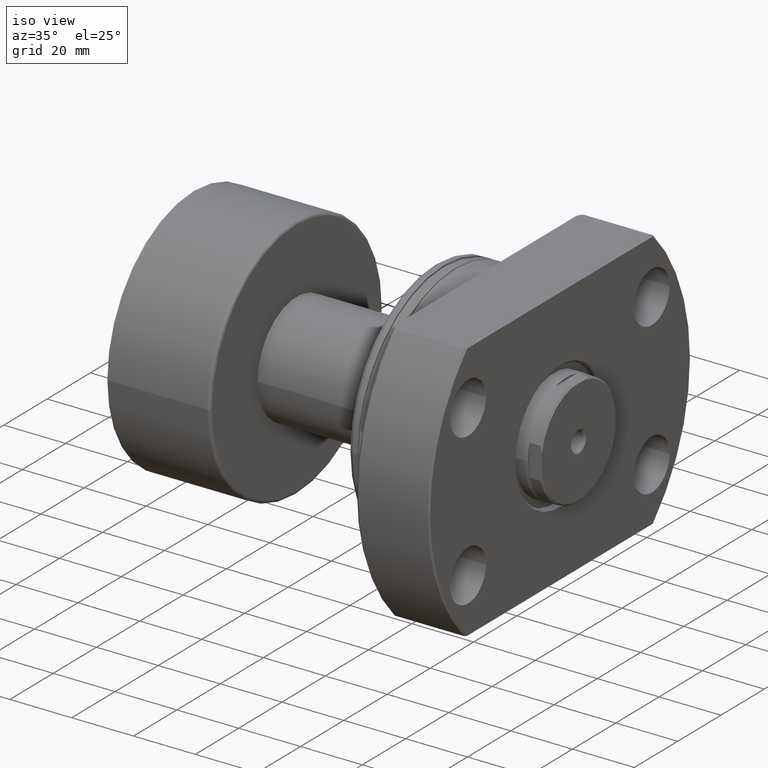
[diagram: clean part render]
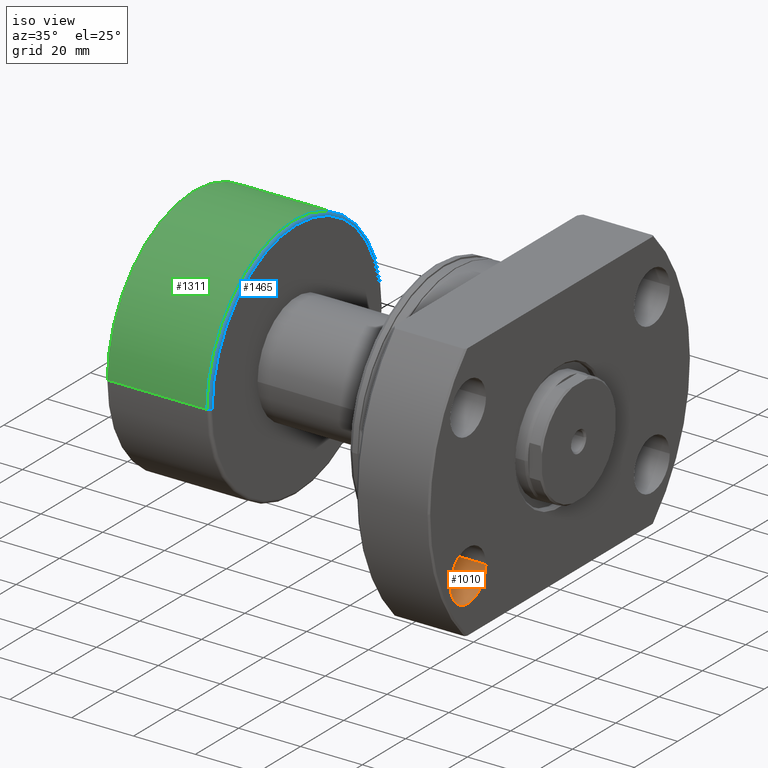
[diagram: same view with three faces highlighted in distinct colors, each labeled with its STEP entity id]
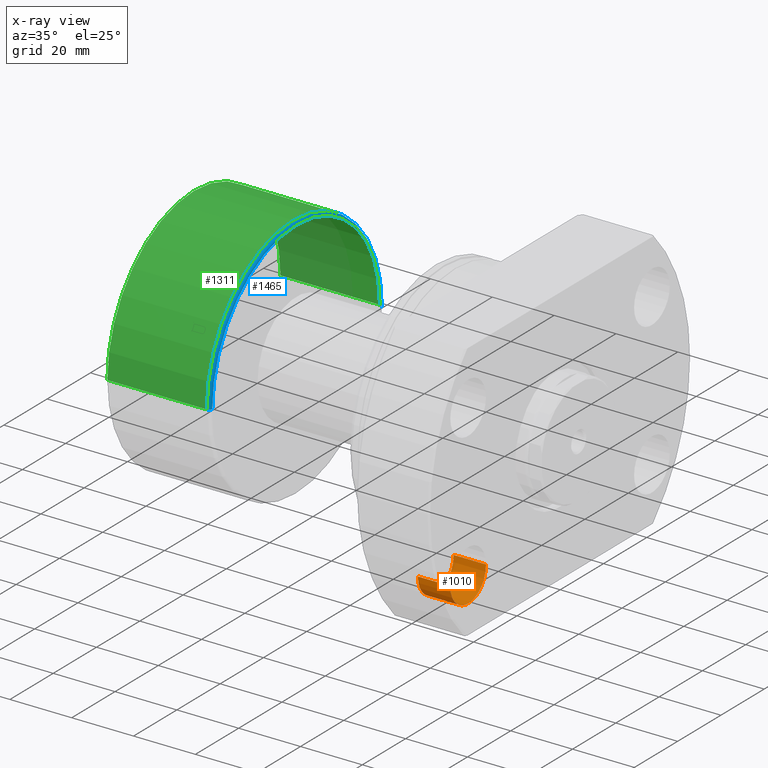
[diagram: x-ray of the same camera — body ghosted, the three highlighted faces saturated]
A machine part, iso view with three faces highlighted in distinct colors.
The next image is the same camera in x-ray (body ghosted, the three faces saturated) — at least one of them is partly hidden behind the body in this view.
Their STEP definitions:

[orange] entity #1010 — the highlighted cylindrical surface (edge-blend (fillet) strip) has radius 8.25 mm, axis along (1, -0, 0).
#145 = CARTESIAN_POINT ( 'NONE',  ( 40.19999999999900808, -34.20000000000116813, -24.49999999999999645 ) ) ;
#329 = ORIENTED_EDGE ( 'NONE', *, *, #1736, .F. ) ;
#396 = DIRECTION ( 'NONE',  ( 1.000000000000000000, -2.886466111666352516E-14, -0.000000000000000000 ) ) ;
#410 = CARTESIAN_POINT ( 'NONE',  ( 29.69999999999852847, -50.70000000000087681, -24.49999999999999645 ) ) ;
#515 = DIRECTION ( 'NONE',  ( 2.859665366458733885E-14, 1.000000000000000000, 0.000000000000000000 ) ) ;
#527 = DIRECTION ( 'NONE',  ( 2.901719268906656730E-14, 1.000000000000000000, 0.000000000000000000 ) ) ;
#561 = CARTESIAN_POINT ( 'NONE',  ( 29.69999999999877005, -42.45000000000086970, -24.49999999999999645 ) ) ;
#610 = CARTESIAN_POINT ( 'NONE',  ( 29.69999999999852847, -50.70000000000087681, -24.49999999999999645 ) ) ;
#773 = FACE_OUTER_BOUND ( 'NONE', #3150, .T. ) ;
#876 = ORIENTED_EDGE ( 'NONE', *, *, #2082, .T. ) ;
#892 = AXIS2_PLACEMENT_3D ( 'NONE', #561, #1530, #527 ) ;
#911 = DIRECTION ( 'NONE',  ( 2.901719268906656730E-14, 1.000000000000000000, 0.000000000000000000 ) ) ;
#1005 = VECTOR ( 'NONE', #3122, 1000.000000000000000 ) ;
#1010 = ADVANCED_FACE ( 'NONE', ( #773 ), #1782, .F. ) ;
#1087 = LINE ( 'NONE', #610, #1005 ) ;
#1237 = DIRECTION ( 'NONE',  ( 1.000000000000000000, -2.889302749805715994E-14, -3.155443620884047222E-30 ) ) ;
#1435 = DIRECTION ( 'NONE',  ( 1.000000000000000000, -2.889302749805715994E-14, -3.155443620884047222E-30 ) ) ;
#1471 = ORIENTED_EDGE ( 'NONE', *, *, #2447, .F. ) ;
#1513 = EDGE_CURVE ( 'NONE', #2378, #2032, #1087, .T. ) ;
#1530 = DIRECTION ( 'NONE',  ( 1.000000000000000000, -2.886466111666352516E-14, -0.000000000000000000 ) ) ;
#1612 = CARTESIAN_POINT ( 'NONE',  ( 29.69999999999900808, -34.20000000000086260, -24.49999999999999645 ) ) ;
#1736 = EDGE_CURVE ( 'NONE', #2378, #1919, #2568, .T. ) ;
#1782 = CYLINDRICAL_SURFACE ( 'NONE', #892, 8.250000000000007105 ) ;
#1848 = VECTOR ( 'NONE', #396, 1000.000000000000000 ) ;
#1919 = VERTEX_POINT ( 'NONE', #1612 ) ;
#1994 = VERTEX_POINT ( 'NONE', #145 ) ;
#2032 = VERTEX_POINT ( 'NONE', #2589 ) ;
#2082 = EDGE_CURVE ( 'NONE', #2032, #1994, #2206, .T. ) ;
#2092 = AXIS2_PLACEMENT_3D ( 'NONE', #2189, #1237, #911 ) ;
#2096 = AXIS2_PLACEMENT_3D ( 'NONE', #2185, #1435, #515 ) ;
#2185 = CARTESIAN_POINT ( 'NONE',  ( 40.19999999999877360, -42.45000000000117524, -24.49999999999999645 ) ) ;
#2189 = CARTESIAN_POINT ( 'NONE',  ( 29.69999999999877005, -42.45000000000086970, -24.49999999999999645 ) ) ;
#2206 = CIRCLE ( 'NONE', #2096, 8.250000000000007105 ) ;
#2378 = VERTEX_POINT ( 'NONE', #410 ) ;
#2400 = ORIENTED_EDGE ( 'NONE', *, *, #1513, .T. ) ;
#2447 = EDGE_CURVE ( 'NONE', #1919, #1994, #2888, .T. ) ;
#2568 = CIRCLE ( 'NONE', #2092, 8.250000000000007105 ) ;
#2589 = CARTESIAN_POINT ( 'NONE',  ( 40.19999999999853202, -50.70000000000118234, -24.49999999999999645 ) ) ;
#2888 = LINE ( 'NONE', #3110, #1848 ) ;
#3110 = CARTESIAN_POINT ( 'NONE',  ( 29.69999999999900808, -34.20000000000086260, -24.49999999999999645 ) ) ;
#3122 = DIRECTION ( 'NONE',  ( 1.000000000000000000, -2.886466111666352516E-14, -0.000000000000000000 ) ) ;
#3150 = EDGE_LOOP ( 'NONE', ( #329, #2400, #876, #1471 ) ) ;

[blue] entity #1465 — the highlighted toroidal blend (fillet) surface has major radius 39 mm and minor (blend) radius 1 mm.
#104 = CARTESIAN_POINT ( 'NONE',  ( 34.70000000000000284, -38.99999999999999289, 0.000000000000000000 ) ) ;
#109 = CARTESIAN_POINT ( 'NONE',  ( 33.70000000000000284, 38.99999999999999289, 4.776122516674677089E-15 ) ) ;
#281 = CIRCLE ( 'NONE', #2151, 39.99999999999999289 ) ;
#324 = ORIENTED_EDGE ( 'NONE', *, *, #2586, .F. ) ;
#355 = CARTESIAN_POINT ( 'NONE',  ( 34.70000000000000284, 38.99999999999999289, 4.837354856632044663E-15 ) ) ;
#394 = ORIENTED_EDGE ( 'NONE', *, *, #1808, .T. ) ;
#532 = AXIS2_PLACEMENT_3D ( 'NONE', #2036, #1822, #2994 ) ;
#562 = DIRECTION ( 'NONE',  ( 0.000000000000000000, -1.000000000000000000, -1.224646799147357151E-16 ) ) ;
#919 = DIRECTION ( 'NONE',  ( 0.000000000000000000, -1.000000000000000000, 0.000000000000000000 ) ) ;
#1160 = ORIENTED_EDGE ( 'NONE', *, *, #2236, .T. ) ;
#1211 = CIRCLE ( 'NONE', #2571, 1.000000000000000888 ) ;
#1416 = CIRCLE ( 'NONE', #532, 38.99999999999999289 ) ;
#1426 = CIRCLE ( 'NONE', #1477, 1.000000000000000888 ) ;
#1465 = ADVANCED_FACE ( 'NONE', ( #2794 ), #2417, .T. ) ;
#1477 = AXIS2_PLACEMENT_3D ( 'NONE', #2735, #2195, #1998 ) ;
#1520 = VERTEX_POINT ( 'NONE', #355 ) ;
#1523 = CARTESIAN_POINT ( 'NONE',  ( 33.70000000000000284, 0.000000000000000000, 0.000000000000000000 ) ) ;
#1606 = EDGE_LOOP ( 'NONE', ( #394, #1160, #3195, #324 ) ) ;
#1707 = VERTEX_POINT ( 'NONE', #3198 ) ;
#1808 = EDGE_CURVE ( 'NONE', #2851, #1520, #1416, .T. ) ;
#1822 = DIRECTION ( 'NONE',  ( -1.000000000000000000, -1.069542322069065801E-17, -0.000000000000000000 ) ) ;
#1925 = DIRECTION ( 'NONE',  ( -1.000000000000000000, -1.069542322069065801E-17, -0.000000000000000000 ) ) ;
#1998 = DIRECTION ( 'NONE',  ( -1.000000000000000000, 0.000000000000000000, 0.000000000000000000 ) ) ;
#2036 = CARTESIAN_POINT ( 'NONE',  ( 34.70000000000000284, 3.711311857579658694E-16, 0.000000000000000000 ) ) ;
#2071 = DIRECTION ( 'NONE',  ( 1.069542322069065801E-17, -1.000000000000000000, 0.000000000000000000 ) ) ;
#2125 = EDGE_CURVE ( 'NONE', #1707, #2555, #281, .T. ) ;
#2151 = AXIS2_PLACEMENT_3D ( 'NONE', #3006, #1925, #919 ) ;
#2195 = DIRECTION ( 'NONE',  ( 0.000000000000000000, 0.000000000000000000, -1.000000000000000000 ) ) ;
#2236 = EDGE_CURVE ( 'NONE', #1520, #2555, #1211, .T. ) ;
#2280 = DIRECTION ( 'NONE',  ( -1.000000000000000000, -1.069542322069065801E-17, -0.000000000000000000 ) ) ;
#2417 = TOROIDAL_SURFACE ( 'NONE', #3192, 38.99999999999999289, 1.000000000000000888 ) ;
#2504 = CARTESIAN_POINT ( 'NONE',  ( 33.70000000000000284, 39.99999999999999289, 4.898587196589412237E-15 ) ) ;
#2555 = VERTEX_POINT ( 'NONE', #2504 ) ;
#2571 = AXIS2_PLACEMENT_3D ( 'NONE', #109, #3065, #562 ) ;
#2586 = EDGE_CURVE ( 'NONE', #2851, #1707, #1426, .T. ) ;
#2735 = CARTESIAN_POINT ( 'NONE',  ( 33.70000000000000284, -38.99999999999999289, 0.000000000000000000 ) ) ;
#2794 = FACE_OUTER_BOUND ( 'NONE', #1606, .T. ) ;
#2851 = VERTEX_POINT ( 'NONE', #104 ) ;
#2994 = DIRECTION ( 'NONE',  ( 0.000000000000000000, -1.000000000000000000, 0.000000000000000000 ) ) ;
#3006 = CARTESIAN_POINT ( 'NONE',  ( 33.70000000000000284, 3.604357625372751759E-16, 0.000000000000000000 ) ) ;
#3065 = DIRECTION ( 'NONE',  ( 1.309811581274509052E-33, -1.224646799147353207E-16, 1.000000000000000000 ) ) ;
#3192 = AXIS2_PLACEMENT_3D ( 'NONE', #1523, #2280, #2071 ) ;
#3195 = ORIENTED_EDGE ( 'NONE', *, *, #2125, .F. ) ;
#3198 = CARTESIAN_POINT ( 'NONE',  ( 33.70000000000000284, -39.99999999999999289, 0.000000000000000000 ) ) ;

[green] entity #1311 — the highlighted cylindrical surface (partial cylindrical patch) has radius 40 mm, axis along (-1, -0, -0).
#92 = LINE ( 'NONE', #2764, #688 ) ;
#98 = EDGE_CURVE ( 'NONE', #105, #2167, #2087, .T. ) ;
#105 = VERTEX_POINT ( 'NONE', #157 ) ;
#157 = CARTESIAN_POINT ( 'NONE',  ( 1.500000000000005107, -39.99999999999999289, 4.898587196589412237E-15 ) ) ;
#173 = ORIENTED_EDGE ( 'NONE', *, *, #2125, .T. ) ;
#249 = CARTESIAN_POINT ( 'NONE',  ( 4.278169288276262587E-16, -39.99999999999999289, 0.000000000000000000 ) ) ;
#257 = ORIENTED_EDGE ( 'NONE', *, *, #98, .F. ) ;
#281 = CIRCLE ( 'NONE', #2151, 39.99999999999999289 ) ;
#282 = AXIS2_PLACEMENT_3D ( 'NONE', #1692, #568, #1277 ) ;
#363 = EDGE_CURVE ( 'NONE', #1707, #105, #2722, .T. ) ;
#364 = AXIS2_PLACEMENT_3D ( 'NONE', #2619, #436, #366 ) ;
#366 = DIRECTION ( 'NONE',  ( 1.084202172485504588E-17, -1.000000000000000000, 0.000000000000000000 ) ) ;
#436 = DIRECTION ( 'NONE',  ( -1.000000000000000000, -1.069542322069065801E-17, -0.000000000000000000 ) ) ;
#568 = DIRECTION ( 'NONE',  ( -1.000000000000000000, -1.069542322069065801E-17, -0.000000000000000000 ) ) ;
#685 = CYLINDRICAL_SURFACE ( 'NONE', #282, 39.99999999999999289 ) ;
#688 = VECTOR ( 'NONE', #1020, 1000.000000000000000 ) ;
#771 = EDGE_LOOP ( 'NONE', ( #173, #847, #257, #1480 ) ) ;
#847 = ORIENTED_EDGE ( 'NONE', *, *, #985, .T. ) ;
#919 = DIRECTION ( 'NONE',  ( 0.000000000000000000, -1.000000000000000000, 0.000000000000000000 ) ) ;
#985 = EDGE_CURVE ( 'NONE', #2555, #2167, #92, .T. ) ;
#1020 = DIRECTION ( 'NONE',  ( -1.000000000000000000, -1.069542322069065801E-17, -0.000000000000000000 ) ) ;
#1277 = DIRECTION ( 'NONE',  ( 1.069542322069065801E-17, -1.000000000000000000, 0.000000000000000000 ) ) ;
#1311 = ADVANCED_FACE ( 'NONE', ( #2915 ), #685, .T. ) ;
#1461 = VECTOR ( 'NONE', #2444, 1000.000000000000000 ) ;
#1480 = ORIENTED_EDGE ( 'NONE', *, *, #363, .F. ) ;
#1692 = CARTESIAN_POINT ( 'NONE',  ( 0.000000000000000000, 0.000000000000000000, 0.000000000000000000 ) ) ;
#1707 = VERTEX_POINT ( 'NONE', #3198 ) ;
#1925 = DIRECTION ( 'NONE',  ( -1.000000000000000000, -1.069542322069065801E-17, -0.000000000000000000 ) ) ;
#2087 = CIRCLE ( 'NONE', #364, 39.99999999999999289 ) ;
#2125 = EDGE_CURVE ( 'NONE', #1707, #2555, #281, .T. ) ;
#2151 = AXIS2_PLACEMENT_3D ( 'NONE', #3006, #1925, #919 ) ;
#2167 = VERTEX_POINT ( 'NONE', #2671 ) ;
#2444 = DIRECTION ( 'NONE',  ( -1.000000000000000000, -1.069542322069065801E-17, -0.000000000000000000 ) ) ;
#2504 = CARTESIAN_POINT ( 'NONE',  ( 33.70000000000000284, 39.99999999999999289, 4.898587196589412237E-15 ) ) ;
#2555 = VERTEX_POINT ( 'NONE', #2504 ) ;
#2619 = CARTESIAN_POINT ( 'NONE',  ( 1.500000000000004663, 1.604313483103603400E-17, 0.000000000000000000 ) ) ;
#2671 = CARTESIAN_POINT ( 'NONE',  ( 1.500000000000004219, 39.99999999999999289, 0.000000000000000000 ) ) ;
#2722 = LINE ( 'NONE', #249, #1461 ) ;
#2764 = CARTESIAN_POINT ( 'NONE',  ( -4.278169288276262587E-16, 39.99999999999999289, 4.898587196589412237E-15 ) ) ;
#2915 = FACE_OUTER_BOUND ( 'NONE', #771, .T. ) ;
#3006 = CARTESIAN_POINT ( 'NONE',  ( 33.70000000000000284, 3.604357625372751759E-16, 0.000000000000000000 ) ) ;
#3198 = CARTESIAN_POINT ( 'NONE',  ( 33.70000000000000284, -39.99999999999999289, 0.000000000000000000 ) ) ;